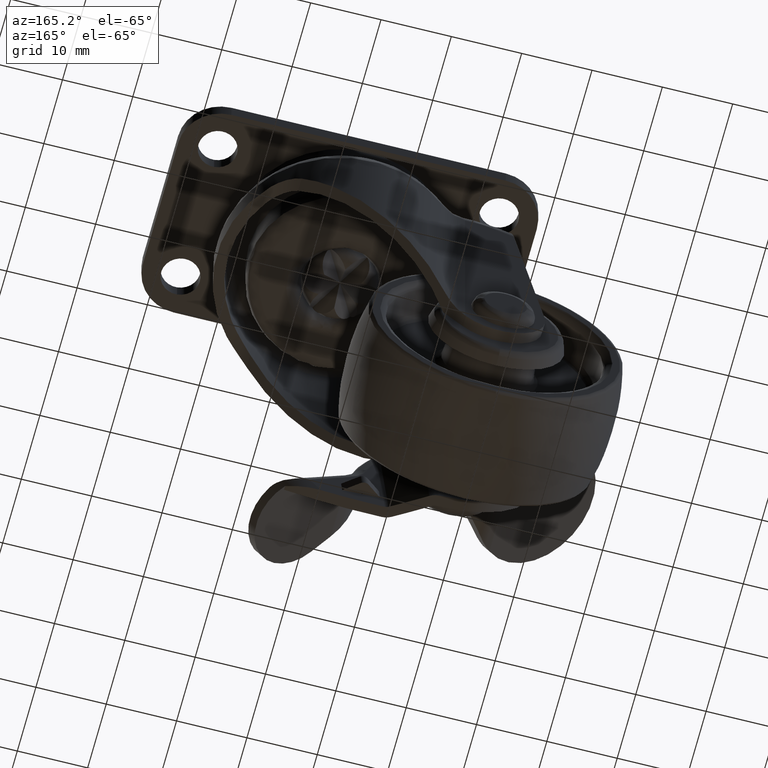
[diagram: clean part render]
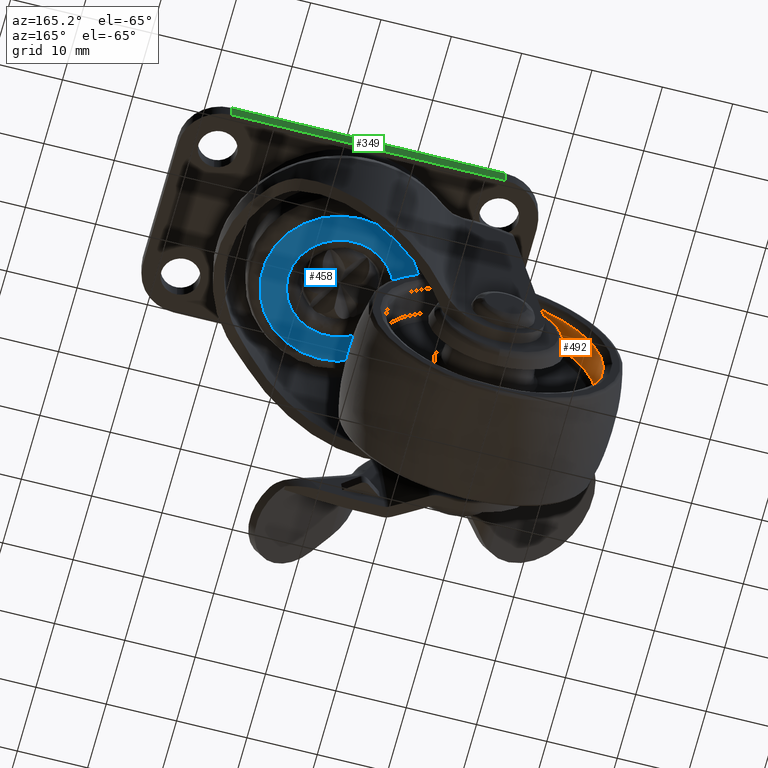
[diagram: same view with three faces highlighted in distinct colors, each labeled with its STEP entity id]
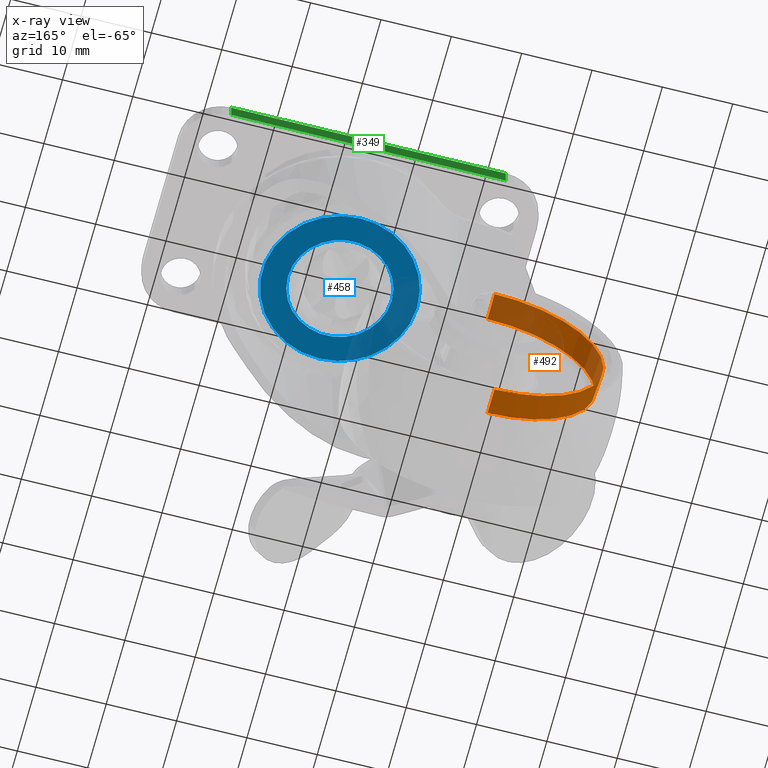
[diagram: x-ray of the same camera — body ghosted, the three highlighted faces saturated]
A machine part, auxiliary view with three faces highlighted in distinct colors.
The next image is the same camera in x-ray (body ghosted, the three faces saturated) — at least one of them is partly hidden behind the body in this view.
Their STEP definitions:

[orange] entity #492 — the highlighted face is a freeform B-spline surface patch.
#492=ADVANCED_FACE('',(#2919),#2918,.F.);
#2918=( BOUNDED_SURFACE() B_SPLINE_SURFACE( 2,1,((#6015,#6016),(#6017,#6018),(#6019,#6020),(#6021,#6022),(#6023,#6024)), .UNSPECIFIED.,.F.,.F.,.F.) B_SPLINE_SURFACE_WITH_KNOTS((3,2,3),(2,2),(0.00000000000E+00,5.00000000000E-01,1.00000000000E+00),(0.00000000000E+00,1.00000000000E+00), .UNSPECIFIED. ) GEOMETRIC_REPRESENTATION_ITEM() RATIONAL_B_SPLINE_SURFACE(((1.00000000000E+00,1.00000000000E+00),(7.07106781187E-01,7.07106781187E-01),(1.00000000000E+00,1.00000000000E+00),(7.07106781187E-01,7.07106781187E-01),(1.00000000000E+00,1.00000000000E+00))) REPRESENTATION_ITEM('') SURFACE() );
#2919=FACE_OUTER_BOUND('',#6025,.T.);
#6015=CARTESIAN_POINT('',(-3.74965611232E+00,-5.60699768721E-15,-1.52615368804E+01));
#6016=CARTESIAN_POINT('',(-7.56292985960E+00,-5.63114701408E-15,-1.55019822362E+01));
#6017=CARTESIAN_POINT('',(-3.74965611232E+00,-1.52615368804E+01,-1.52615368804E+01));
#6018=CARTESIAN_POINT('',(-7.56292985960E+00,-1.55019822362E+01,-1.55019822362E+01));
#6019=CARTESIAN_POINT('',(-3.74965611232E+00,-1.52615368804E+01,5.53946707574E-15));
#6020=CARTESIAN_POINT('',(-7.56292985960E+00,-1.55019822362E+01,5.62674132226E-15));
#6021=CARTESIAN_POINT('',(-3.74965611232E+00,-1.52615368804E+01,1.52615368804E+01));
#6022=CARTESIAN_POINT('',(-7.56292985960E+00,-1.55019822362E+01,1.55019822362E+01));
#6023=CARTESIAN_POINT('',(-3.74965611232E+00,5.47193646428E-15,1.52615368804E+01));
#6024=CARTESIAN_POINT('',(-7.56292985960E+00,5.62233563044E-15,1.55019822362E+01));
#6025=EDGE_LOOP('',(#7954,#7955,#7956,#7957));
#7954=ORIENTED_EDGE('',*,*,#8741,.T.);
#7955=ORIENTED_EDGE('',*,*,#8738,.F.);
#7956=ORIENTED_EDGE('',*,*,#8742,.F.);
#7957=ORIENTED_EDGE('',*,*,#8740,.T.);
#8738=EDGE_CURVE('',#13142,#13150,#13151,.T.);
#8740=EDGE_CURVE('',#13143,#13157,#13164,.T.);
#8741=EDGE_CURVE('',#13157,#13150,#13170,.T.);
#8742=EDGE_CURVE('',#13143,#13142,#13176,.T.);
#13142=VERTEX_POINT('',#18203);
#13143=VERTEX_POINT('',#18204);
#13150=VERTEX_POINT('',#18209);
#13151=(BOUNDED_CURVE() B_SPLINE_CURVE(1,(#18210,#18211),.UNSPECIFIED.,.F.,.F.) B_SPLINE_CURVE_WITH_KNOTS((2,2),(0.00000000000E+00,1.00000000000E+00),.UNSPECIFIED.) CURVE() GEOMETRIC_REPRESENTATION_ITEM() RATIONAL_B_SPLINE_CURVE((1.00000000000E+00,1.00000000000E+00)) REPRESENTATION_ITEM('') );
#13157=VERTEX_POINT('',#18212);
#13164=(BOUNDED_CURVE() B_SPLINE_CURVE(1,(#18217,#18218),.UNSPECIFIED.,.F.,.F.) B_SPLINE_CURVE_WITH_KNOTS((2,2),(0.00000000000E+00,1.00000000000E+00),.UNSPECIFIED.) CURVE() GEOMETRIC_REPRESENTATION_ITEM() RATIONAL_B_SPLINE_CURVE((7.50000000000E-01,7.50000000000E-01)) REPRESENTATION_ITEM('') );
#13170=CIRCLE('',#18222,1.55019822362E+01);
#13176=CIRCLE('',#18226,1.52615368804E+01);
#18203=CARTESIAN_POINT('',(-3.74965611232E+00,-3.64529434268E-15,1.52615368804E+01));
#18204=CARTESIAN_POINT('',(-3.74965611232E+00,5.92118946467E-16,-1.52615368804E+01));
#18209=CARTESIAN_POINT('',(-7.56292985960E+00,-3.67473943373E-15,1.55019822362E+01));
#18210=CARTESIAN_POINT('',(-3.74965611232E+00,9.20993492241E-15,1.52615368804E+01));
#18211=CARTESIAN_POINT('',(-7.56292985960E+00,9.41922621564E-15,1.55019822362E+01));
#18212=CARTESIAN_POINT('',(-7.56292985960E+00,5.92118946467E-16,-1.55019822362E+01));
#18217=CARTESIAN_POINT('',(-3.74965611232E+00,-7.69754630407E-15,-1.52615368804E+01));
#18218=CARTESIAN_POINT('',(-7.56292985960E+00,-8.28966525053E-15,-1.55019822362E+01));
#18219=CARTESIAN_POINT('',(-7.56292985960E+00,0.00000000000E+00,0.00000000000E+00));
#18220=DIRECTION('',(-1.00000000000E+00,0.00000000000E+00,0.00000000000E+00));
#18221=DIRECTION('',(-0.00000000000E+00,-1.14589012704E-16,1.00000000000E+00));
#18222=AXIS2_PLACEMENT_3D('',#18219,#18220,#18221);
#18223=CARTESIAN_POINT('',(-3.74965611232E+00,0.00000000000E+00,0.00000000000E+00));
#18224=DIRECTION('',(-1.00000000000E+00,0.00000000000E+00,0.00000000000E+00));
#18225=DIRECTION('',(-0.00000000000E+00,-1.16394361415E-16,1.00000000000E+00));
#18226=AXIS2_PLACEMENT_3D('',#18223,#18224,#18225);

[blue] entity #458 — the highlighted planar face has unit normal (0, 0, -1).
#458=ADVANCED_FACE('',(#2567,#2568),#2566,.T.);
#2566=PLANE('',#5640);
#2567=FACE_OUTER_BOUND('',#5641,.T.);
#2568=FACE_BOUND('',#5642,.T.);
#5637=CARTESIAN_POINT('',(4.51240016696E+01,-2.29410133475E+01,2.20227903966E+01));
#5638=DIRECTION('',(0.00000000000E+00,0.00000000000E+00,-1.00000000000E+00));
#5639=DIRECTION('',(-1.00000000000E+00,0.00000000000E+00,0.00000000000E+00));
#5640=AXIS2_PLACEMENT_3D('',#5637,#5638,#5639);
#5641=EDGE_LOOP('',(#7768,#7769,#7770,#7771));
#5642=EDGE_LOOP('',(#7772,#7773));
#7768=ORIENTED_EDGE('',*,*,#8649,.T.);
#7769=ORIENTED_EDGE('',*,*,#8650,.T.);
#7770=ORIENTED_EDGE('',*,*,#8651,.T.);
#7771=ORIENTED_EDGE('',*,*,#8652,.T.);
#7772=ORIENTED_EDGE('',*,*,#8653,.F.);
#7773=ORIENTED_EDGE('',*,*,#8654,.F.);
#8649=EDGE_CURVE('',#12545,#12546,#12547,.T.);
#8650=EDGE_CURVE('',#12546,#12553,#12554,.T.);
#8651=EDGE_CURVE('',#12553,#12560,#12561,.T.);
#8652=EDGE_CURVE('',#12560,#12545,#12567,.T.);
#8653=EDGE_CURVE('',#12573,#12574,#12575,.T.);
#8654=EDGE_CURVE('',#12574,#12573,#12581,.T.);
#12545=VERTEX_POINT('',#17802);
#12546=VERTEX_POINT('',#17803);
#12547=CIRCLE('',#17807,1.10000197863E+01);
#12553=VERTEX_POINT('',#17808);
#12554=CIRCLE('',#17812,1.10000000032E+01);
#12560=VERTEX_POINT('',#17813);
#12561=CIRCLE('',#17817,1.10000000032E+01);
#12567=CIRCLE('',#17821,1.10000000032E+01);
#12573=VERTEX_POINT('',#17822);
#12574=VERTEX_POINT('',#17823);
#12575=CIRCLE('',#17827,7.36613794501E+00);
#12581=CIRCLE('',#17831,7.36613794501E+00);
#17802=CARTESIAN_POINT('',(9.00347391164E+00,-2.76431050647E-01,2.20227903966E+01));
#17803=CARTESIAN_POINT('',(9.00000000000E+00,0.00000000000E+00,2.20227903966E+01));
#17804=CARTESIAN_POINT('',(2.00000197863E+01,-2.85978685177E-10,2.20227903966E+01));
#17805=DIRECTION('',(-1.09904294552E-15,4.37204002691E-14,-1.00000000000E+00));
#17806=DIRECTION('',(9.99684190419E-01,2.51300502846E-02,-0.00000000000E+00));
#17807=AXIS2_PLACEMENT_3D('',#17804,#17805,#17806);
#17808=CARTESIAN_POINT('',(2.00011416125E+01,1.09999999471E+01,2.20227903966E+01));
#17809=CARTESIAN_POINT('',(1.99999999968E+01,3.12830103488E-09,2.20227903966E+01));
#17810=DIRECTION('',(6.45947941788E-16,1.06363963486E-34,-1.00000000000E+00));
#17811=DIRECTION('',(-1.00000000000E+00,-2.84391125714E-10,-6.45947941788E-16));
#17812=AXIS2_PLACEMENT_3D('',#17809,#17810,#17811);
#17813=CARTESIAN_POINT('',(2.00000000000E+01,-1.10000000001E+01,2.20227903966E+01));
#17814=CARTESIAN_POINT('',(1.99999999968E+01,3.12830103488E-09,2.20227903966E+01));
#17815=DIRECTION('',(6.45947941788E-16,1.06363963486E-34,-1.00000000000E+00));
#17816=DIRECTION('',(-1.00000000000E+00,-2.84391125714E-10,-6.45947941788E-16));
#17817=AXIS2_PLACEMENT_3D('',#17814,#17815,#17816);
#17818=CARTESIAN_POINT('',(1.99999999968E+01,3.12830103488E-09,2.20227903966E+01));
#17819=DIRECTION('',(6.45947941788E-16,1.06363963486E-34,-1.00000000000E+00));
#17820=DIRECTION('',(-1.00000000000E+00,-2.84391125714E-10,-6.45947941788E-16));
#17821=AXIS2_PLACEMENT_3D('',#17818,#17819,#17820);
#17822=CARTESIAN_POINT('',(1.91494753840E+01,7.31687064955E+00,2.20227903966E+01));
#17823=CARTESIAN_POINT('',(2.08517826483E+01,-7.31672430431E+00,2.20227903966E+01));
#17824=CARTESIAN_POINT('',(2.00000000000E+01,-1.97433180915E-11,2.20227903966E+01));
#17825=DIRECTION('',(1.49053977300E-14,1.73262700494E-15,-1.00000000000E+00));
#17826=DIRECTION('',(1.15634903210E-01,-9.93291784502E-01,2.58005419146E-18));
#17827=AXIS2_PLACEMENT_3D('',#17824,#17825,#17826);
#17828=CARTESIAN_POINT('',(2.00000000000E+01,-1.97433180915E-11,2.20227903966E+01));
#17829=DIRECTION('',(1.49053977300E-14,1.73262700494E-15,-1.00000000000E+00));
#17830=DIRECTION('',(1.15634903210E-01,-9.93291784502E-01,2.58005419146E-18));
#17831=AXIS2_PLACEMENT_3D('',#17828,#17829,#17830);

[green] entity #349 — the highlighted planar face has unit normal (0, -1, 0).
#349=ADVANCED_FACE('',(#1460),#1459,.F.);
#1459=PLANE('',#4190);
#1460=FACE_OUTER_BOUND('',#4191,.T.);
#4187=CARTESIAN_POINT('',(-3.40000018850E+00,1.55000000000E+01,3.82299999000E+01));
#4188=DIRECTION('',(0.00000000000E+00,-1.00000000000E+00,0.00000000000E+00));
#4189=DIRECTION('',(0.00000000000E+00,0.00000000000E+00,-1.00000000000E+00));
#4190=AXIS2_PLACEMENT_3D('',#4187,#4188,#4189);
#4191=EDGE_LOOP('',(#7225,#7226,#7227,#7228));
#7225=ORIENTED_EDGE('',*,*,#8389,.T.);
#7226=ORIENTED_EDGE('',*,*,#8411,.F.);
#7227=ORIENTED_EDGE('',*,*,#8369,.F.);
#7228=ORIENTED_EDGE('',*,*,#8410,.T.);
#8369=EDGE_CURVE('',#10687,#10694,#10695,.T.);
#8389=EDGE_CURVE('',#10834,#10827,#10835,.T.);
#8410=EDGE_CURVE('',#10687,#10834,#10976,.T.);
#8411=EDGE_CURVE('',#10694,#10827,#10982,.T.);
#10687=VERTEX_POINT('',#15921);
#10694=VERTEX_POINT('',#15926);
#10695=LINE('',#15927,#15928);
#10827=VERTEX_POINT('',#16017);
#10834=VERTEX_POINT('',#16022);
#10835=LINE('',#16023,#16024);
#10976=LINE('',#16116,#16117);
#10982=LINE('',#16119,#16120);
#15921=CARTESIAN_POINT('',(3.95000018850E+01,1.55000000000E+01,3.80000000000E+01));
#15926=CARTESIAN_POINT('',(5.00000000000E-01,1.55000000000E+01,3.80000000000E+01));
#15927=CARTESIAN_POINT('',(3.95000018850E+01,1.55000000000E+01,3.80000000000E+01));
#15928=VECTOR('',#15929,3.90000018850E+01);
#15929=DIRECTION('',(-1.00000000000E+00,0.00000000000E+00,0.00000000000E+00));
#16017=CARTESIAN_POINT('',(5.00000000000E-01,1.55000000000E+01,3.57000010000E+01));
#16022=CARTESIAN_POINT('',(3.95000018850E+01,1.55000000000E+01,3.57000010000E+01));
#16023=CARTESIAN_POINT('',(3.95000018850E+01,1.55000000000E+01,3.57000010000E+01));
#16024=VECTOR('',#16025,3.90000018850E+01);
#16025=DIRECTION('',(-1.00000000000E+00,0.00000000000E+00,0.00000000000E+00));
#16116=CARTESIAN_POINT('',(3.95000018850E+01,1.55000000000E+01,3.80000000000E+01));
#16117=VECTOR('',#16118,2.29999900000E+00);
#16118=DIRECTION('',(0.00000000000E+00,0.00000000000E+00,-1.00000000000E+00));
#16119=CARTESIAN_POINT('',(5.00000000000E-01,1.55000000000E+01,3.80000000000E+01));
#16120=VECTOR('',#16121,2.29999900000E+00);
#16121=DIRECTION('',(0.00000000000E+00,0.00000000000E+00,-1.00000000000E+00));